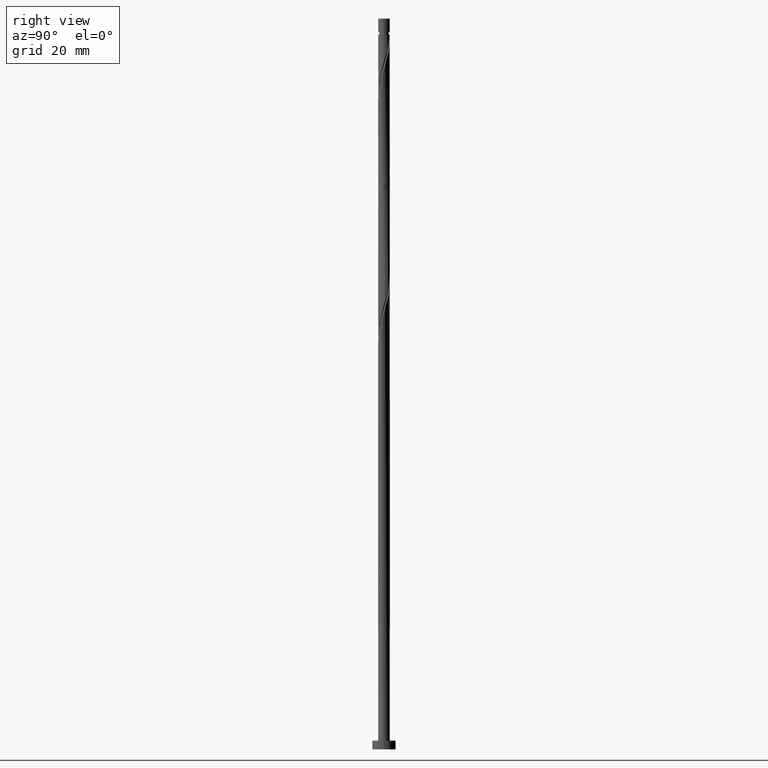
[diagram: clean part render]
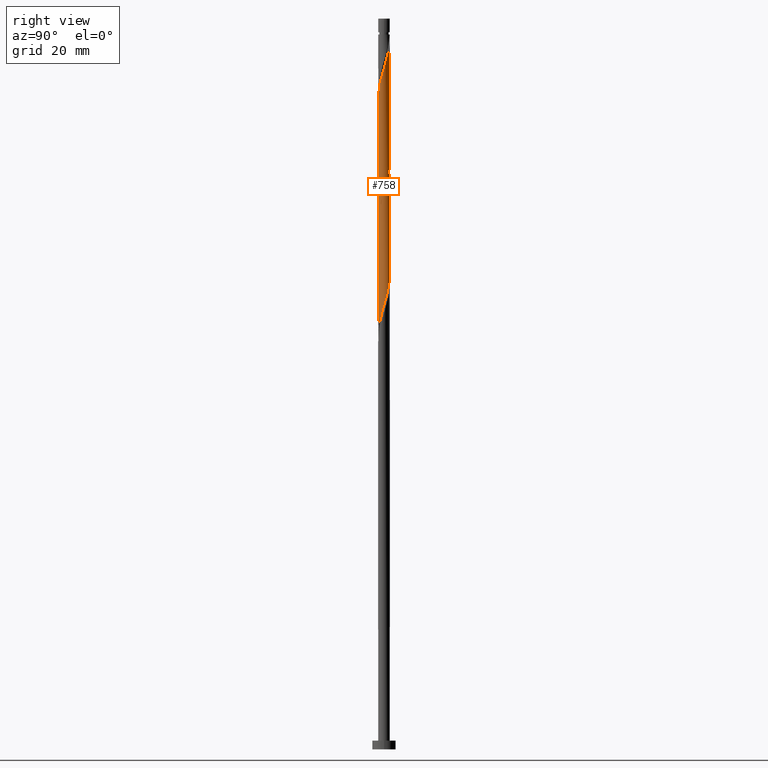
[diagram: same view with one face highlighted and labeled with its STEP entity id]
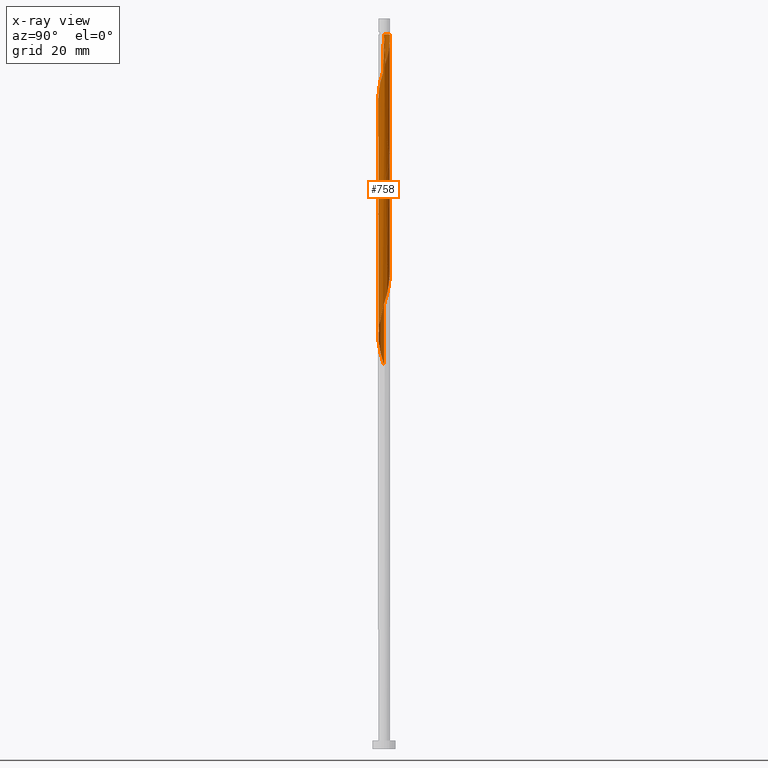
[diagram: x-ray of the same camera — body ghosted, the highlighted face saturated]
A machine part, right view. The second image highlights one B-rep face of the part: STEP entity #758.
The next image is the same camera in x-ray: the body ghosted, the highlighted face saturated — about 0% of this face is hidden behind the body in this view.
In plain terms, the highlighted cylindrical surface (bore or boss wall) has radius 2 mm, axis along (-0, -0, -1).
Its self-contained STEP definition (entity closure, byte-faithful):
#16 = DIRECTION ( 'NONE',  ( -1.000000000000000000, 0.000000000000000000, 0.000000000000000000 ) ) ;
#29 = CARTESIAN_POINT ( 'NONE',  ( -2.000000000000000444, -0.1625128770740892348, 131.8525064996769345 ) ) ;
#35 = CARTESIAN_POINT ( 'NONE',  ( 1.999999999999999556, 0.1625128770740915940, 194.3525064996769061 ) ) ;
#43 = CARTESIAN_POINT ( 'NONE',  ( -0.8554886662037719525, -1.807799530367482976, 138.7989864505392745 ) ) ;
#44 = AXIS2_PLACEMENT_3D ( 'NONE', #468, #209, #1661 ) ;
#82 = CARTESIAN_POINT ( 'NONE',  ( -2.000000000000003109, -5.234578486650210785E-17, 211.9902953438781879 ) ) ;
#85 = CARTESIAN_POINT ( 'NONE',  ( -1.691500872565838032, 1.067157344588420598, 210.9143710659238593 ) ) ;
#103 = CARTESIAN_POINT ( 'NONE',  ( 1.974395566656741430, 0.4009181193270345833, 234.1515505531035046 ) ) ;
#107 = CARTESIAN_POINT ( 'NONE',  ( -1.001816893764148064, 1.731000552099494438, 166.0425761941290546 ) ) ;
#110 = CARTESIAN_POINT ( 'NONE',  ( 1.561924511375714308, 1.272542735157548677, 237.3566787582316522 ) ) ;
#120 = CARTESIAN_POINT ( 'NONE',  ( -0.3979949748427103473, 1.960000000000608367, 244.5682172197699913 ) ) ;
#121 = CARTESIAN_POINT ( 'NONE',  ( -0.08262873780345499075, 1.998292393942640688, 204.5041146556675358 ) ) ;
#129 = CIRCLE ( 'NONE', #44, 1.999999999999982681 ) ;
#130 = VERTEX_POINT ( 'NONE', #325 ) ;
#157 = VECTOR ( 'NONE', #222, 1000.000000000000000 ) ;
#165 = CARTESIAN_POINT ( 'NONE',  ( -1.074995270449262907, -1.703924399892854602, 137.9977043992572305 ) ) ;
#167 =( BOUNDED_CURVE ( )  B_SPLINE_CURVE ( 2, ( #648, #716, #854, #1638, #817, #1263, #489, #1406, #636, #1565, #1700, #993, #1693, #617, #381, #511, #255, #769, #1413, #742, #1025, #1142, #733, #609, #1282, #885, #388, #1677, #1536, #1542, #1685, #1440, #1006, #261, #760, #374, #107, #226, #1422, #1291, #1001, #625, #1295, #367, #891, #495, #1550, #878, #245, #753, #1150, #1016, #327, #1370, #175, #186, #1206, #945, #1227, #1347, #1088, #681, #1485, #1118, #560, #1075, #1214, #714, #1645, #1525, #43, #165, #693, #973, #572, #339, #955, #205, #850, #29, #445 ),
 .UNSPECIFIED., .F., .T. ) 
 B_SPLINE_CURVE_WITH_KNOTS ( ( 3, 2, 2, 2, 2, 2, 2, 2, 2, 2, 2, 2, 2, 2, 2, 2, 2, 2, 2, 2, 2, 2, 2, 2, 2, 2, 2, 2, 2, 2, 2, 2, 2, 2, 2, 2, 2, 2, 2, 2, 3 ),
 ( 0.5545271625973832164, 0.5576923076923077094, 0.5673076923076922906, 0.5769230769230768718, 0.5865384615384615641, 0.5961538461538461453, 0.6057692307692307265, 0.6153846153846154188, 0.6250000000000000000, 0.6346153846153845812, 0.6442307692307692735, 0.6538461538461538547, 0.6634615384615384359, 0.6730769230769231282, 0.6826923076923077094, 0.6923076923076922906, 0.7019230769230768718, 0.7115384615384615641, 0.7211538461538461453, 0.7307692307692307265, 0.7403846153846154188, 0.7500000000000000000, 0.7596153846153845812, 0.7692307692307692735, 0.7788461538461538547, 0.7884615384615384359, 0.7980769230769231282, 0.8076923076923077094, 0.8173076923076922906, 0.8269230769230768718, 0.8365384615384615641, 0.8461538461538461453, 0.8557692307692307265, 0.8653846153846154188, 0.8750000000000000000, 0.8846153846153845812, 0.8942307692307692735, 0.9038461538461537437, 0.9134615384615383249, 0.9230769230769231282, 0.9295271625973833274 ),
 .UNSPECIFIED. ) 
 CURVE ( )  GEOMETRIC_REPRESENTATION_ITEM ( )  RATIONAL_B_SPLINE_CURVE ( ( 0.9061636035682996138, 0.9069090390690881520, 0.9090909090909448098, 0.9024626128164481287, 0.9090909090909448098, 0.9024626128164481287, 0.9090909090909448098, 0.9024626128164481287, 0.9090909090909448098, 0.9024626128164481287, 0.9090909090909448098, 0.9024626128164481287, 0.9090909090909448098, 0.9024626128164481287, 0.9090909090909448098, 0.9024626128164481287, 0.9090909090909448098, 0.9024626128164481287, 0.9090909090909448098, 0.9024626128164481287, 0.9090909090909448098, 0.9024626128164481287, 0.9090909090909448098, 0.9024626128164481287, 0.9090909090909448098, 0.9024626128164481287, 0.9090909090909448098, 0.9024626128164481287, 0.9090909090909448098, 0.9024626128164481287, 0.9090909090909448098, 0.9024626128164481287, 0.9090909090909448098, 0.9024626128164481287, 0.9090909090909448098, 0.9024626128164481287, 0.9090909090909448098, 0.9024626128164481287, 0.9090909090909448098, 0.9024626128164481287, 0.9090909090909448098, 0.9024626128164481287, 0.9090909090909448098, 0.9024626128164481287, 0.9090909090909448098, 0.9024626128164481287, 0.9090909090909448098, 0.9024626128164481287, 0.9090909090909448098, 0.9024626128164481287, 0.9090909090909448098, 0.9024626128164481287, 0.9090909090909448098, 0.9024626128164481287, 0.9090909090909448098, 0.9024626128164481287, 0.9090909090909448098, 0.9024626128164481287, 0.9090909090909448098, 0.9024626128164481287, 0.9090909090909448098, 0.9024626128164481287, 0.9090909090909448098, 0.9024626128164481287, 0.9090909090909448098, 0.9024626128164481287, 0.9090909090909448098, 0.9024626128164481287, 0.9090909090909448098, 0.9024626128164481287, 0.9090909090909448098, 0.9024626128164481287, 0.9090909090909448098, 0.9024626128164481287, 0.9090909090909448098, 0.9024626128164481287, 0.9090909090909448098, 0.9024626128164481287, 0.9090909090909448098, 0.9046444828383046755, 0.9061636035682995027 ) ) 
 REPRESENTATION_ITEM ( '' )  );
#175 = CARTESIAN_POINT ( 'NONE',  ( 1.993682386258019967, -0.1588412500722983789, 151.6194992710520921 ) ) ;
#185 = VERTEX_POINT ( 'NONE', #1242 ) ;
#186 = CARTESIAN_POINT ( 'NONE',  ( 1.974395566656737877, -0.4009181193270348609, 150.8182172197700766 ) ) ;
#199 = DIRECTION ( 'NONE',  ( -0.000000000000000000, -0.000000000000000000, -1.000000000000000000 ) ) ;
#201 = CARTESIAN_POINT ( 'NONE',  ( 1.074995270449263352, -1.703924399892858377, 226.1387300402829226 ) ) ;
#205 = CARTESIAN_POINT ( 'NONE',  ( -1.934556391662673569, -0.5625520060541976397, 133.1900120915649097 ) ) ;
#209 = DIRECTION ( 'NONE',  ( -0.000000000000000000, -0.000000000000000000, -1.000000000000000000 ) ) ;
#219 = CARTESIAN_POINT ( 'NONE',  ( -1.211998413758899718, -1.609357958033089009, 218.1259095274624542 ) ) ;
#222 = DIRECTION ( 'NONE',  ( -0.000000000000000000, -0.000000000000000000, -1.000000000000000000 ) ) ;
#223 = CARTESIAN_POINT ( 'NONE',  ( -1.999999999999982681, 0.000000000000000000, 244.5682172197700766 ) ) ;
#226 = CARTESIAN_POINT ( 'NONE',  ( -0.7916353737693995196, 1.852643146165902310, 165.2412941428469537 ) ) ;
#229 = CARTESIAN_POINT ( 'NONE',  ( 1.897736400206355922, 0.6313450366731626628, 234.9528326043853781 ) ) ;
#230 =( BOUNDED_CURVE ( )  B_SPLINE_CURVE ( 2, ( #82, #598, #1220, #1096, #1127, #1105, #460, #485, #831, #219, #1640, #1512, #477, #1239, #335, #1377, #451, #843, #709, #201, #986, #1529, #353, #856, #728, #865, #1408, #1434, #258, #103, #229, #755, #611, #110, #1544, #1273, #763, #369, #1710, #1293, #643, #1416, #120 ),
 .UNSPECIFIED., .F., .T. ) 
 B_SPLINE_CURVE_WITH_KNOTS ( ( 3, 2, 2, 2, 2, 2, 2, 2, 2, 2, 2, 2, 2, 2, 2, 2, 2, 2, 2, 2, 2, 3 ),
 ( 0.5545271625973832164, 0.5576923076923077094, 0.5673076923076922906, 0.5769230769230768718, 0.5865384615384615641, 0.5961538461538461453, 0.6057692307692308376, 0.6153846153846154188, 0.6250000000000000000, 0.6346153846153845812, 0.6442307692307691624, 0.6538461538461537437, 0.6634615384615383249, 0.6730769230769230171, 0.6826923076923075984, 0.6923076923076921796, 0.7019230769230767608, 0.7115384615384614531, 0.7211538461538460343, 0.7307692307692307265, 0.7403846153846153078, 0.7499999999999998890 ),
 .UNSPECIFIED. ) 
 CURVE ( )  GEOMETRIC_REPRESENTATION_ITEM ( )  RATIONAL_B_SPLINE_CURVE ( ( 0.9061636035683054979, 0.9069090390690941472, 0.9090909090909508050, 0.9024626128164540129, 0.9090909090909508050, 0.9024626128164540129, 0.9090909090909508050, 0.9024626128164540129, 0.9090909090909508050, 0.9024626128164540129, 0.9090909090909508050, 0.9024626128164540129, 0.9090909090909508050, 0.9024626128164540129, 0.9090909090909508050, 0.9024626128164540129, 0.9090909090909508050, 0.9024626128164540129, 0.9090909090909508050, 0.9024626128164540129, 0.9090909090909508050, 0.9024626128164540129, 0.9090909090909508050, 0.9024626128164540129, 0.9090909090909508050, 0.9024626128164540129, 0.9090909090909508050, 0.9024626128164540129, 0.9090909090909508050, 0.9024626128164540129, 0.9090909090909508050, 0.9024626128164540129, 0.9090909090909508050, 0.9024626128164540129, 0.9090909090909508050, 0.9024626128164540129, 0.9090909090909508050, 0.9024626128164540129, 0.9090909090909508050, 0.9024626128164540129, 0.9090909090909508050, 0.9024626128164541239, 0.9090909090909506940 ) ) 
 REPRESENTATION_ITEM ( '' )  );
#235 = ORIENTED_EDGE ( 'NONE', *, *, #251, .T. ) ;
#244 = EDGE_LOOP ( 'NONE', ( #954, #1170, #943, #235, #931, #608, #543, #559 ) ) ;
#245 = CARTESIAN_POINT ( 'NONE',  ( 1.597623926539769146, 1.203161580731220814, 156.4271915787444129 ) ) ;
#251 = EDGE_CURVE ( 'NONE', #436, #1473, #1251, .T. ) ;
#255 = CARTESIAN_POINT ( 'NONE',  ( -0.3979949748426498957, -1.959999999999999520, 182.0682172197700766 ) ) ;
#258 = CARTESIAN_POINT ( 'NONE',  ( 1.993682386258022632, 0.1588412500722958531, 233.3502685018213754 ) ) ;
#261 = CARTESIAN_POINT ( 'NONE',  ( -1.561924511375710978, 1.272542735157548233, 168.4464223479751297 ) ) ;
#264 = CARTESIAN_POINT ( 'NONE',  ( -2.000000000000003109, -5.234578486650210785E-17, 211.9902953438781879 ) ) ;
#273 = CARTESIAN_POINT ( 'NONE',  ( 1.074995270449263129, 1.703924399892854602, 200.4977043992572021 ) ) ;
#286 = CARTESIAN_POINT ( 'NONE',  ( -1.561924511375710978, 1.272542735157548233, 210.1130890146418437 ) ) ;
#325 = CARTESIAN_POINT ( 'NONE',  ( 2.000000000000000444, 2.123743271726671248E-15, 193.8128057623286224 ) ) ;
#327 = CARTESIAN_POINT ( 'NONE',  ( 1.973762798760987147, 0.3228938126183191204, 153.2220633736161801 ) ) ;
#335 = CARTESIAN_POINT ( 'NONE',  ( -0.08262873780345621200, -1.998292393942642908, 222.1323197838725889 ) ) ;
#339 = CARTESIAN_POINT ( 'NONE',  ( -1.743714191808983793, -1.009174915127427186, 134.7925761941290261 ) ) ;
#353 = CARTESIAN_POINT ( 'NONE',  ( 1.597623926539770256, -1.203161580731224145, 228.5425761941290261 ) ) ;
#354 = CARTESIAN_POINT ( 'NONE',  ( -0.5584503685516643001, 1.920451297446647221, 206.1066787582315953 ) ) ;
#357 = CARTESIAN_POINT ( 'NONE',  ( -2.000000000000000000, 0.000000000000000000, 250.0000000000000000 ) ) ;
#358 = LINE ( 'NONE', #723, #1114 ) ;
#367 = CARTESIAN_POINT ( 'NONE',  ( 0.6359820619582814416, 1.911674660842111129, 160.4336018351546613 ) ) ;
#369 = CARTESIAN_POINT ( 'NONE',  ( 0.7916353737694016290, 1.852643146165904975, 240.5618069633598850 ) ) ;
#374 = CARTESIAN_POINT ( 'NONE',  ( -1.211998413758896609, 1.609357958033087010, 166.8438582454109849 ) ) ;
#381 = CARTESIAN_POINT ( 'NONE',  ( 0.08262873780345436625, -1.998292393942640688, 183.6707813223341645 ) ) ;
#388 = CARTESIAN_POINT ( 'NONE',  ( -1.973762798760987147, -0.3228938126183189539, 174.0553967069495798 ) ) ;
#390 = CARTESIAN_POINT ( 'NONE',  ( 0.6359820619582814416, 1.911674660842111129, 202.1002685018213469 ) ) ;
#414 = CARTESIAN_POINT ( 'NONE',  ( 1.973762798760987147, 0.3228938126183191204, 194.8887300402828657 ) ) ;
#423 = CYLINDRICAL_SURFACE ( 'NONE', #1048, 2.000000000000000000 ) ;
#436 = VERTEX_POINT ( 'NONE', #264 ) ;
#445 = CARTESIAN_POINT ( 'NONE',  ( -2.000000000000000000, 2.669635028191625354E-15, 131.3128057623286224 ) ) ;
#451 = CARTESIAN_POINT ( 'NONE',  ( 0.3979949748426497291, -1.960000000000002629, 223.7348838864367622 ) ) ;
#460 = CARTESIAN_POINT ( 'NONE',  ( -1.691500872565841140, -1.067157344588421486, 215.7220633736162085 ) ) ;
#468 = CARTESIAN_POINT ( 'NONE',  ( 0.000000000000000000, 0.000000000000000000, 244.5682172197700766 ) ) ;
#477 = CARTESIAN_POINT ( 'NONE',  ( -0.5584503685516657434, -1.920451297446650329, 220.5297556813085009 ) ) ;
#485 = CARTESIAN_POINT ( 'NONE',  ( -1.561924511375713642, -1.272542735157549787, 216.5233454248983378 ) ) ;
#489 = CARTESIAN_POINT ( 'NONE',  ( 1.691500872565838032, -1.067157344588420820, 190.0810377325905733 ) ) ;
#494 = EDGE_CURVE ( 'NONE', #1031, #1469, #129, .T. ) ;
#495 = CARTESIAN_POINT ( 'NONE',  ( 1.074995270449263129, 1.703924399892854602, 158.8310377325905165 ) ) ;
#508 = CARTESIAN_POINT ( 'NONE',  ( -2.000000000000000888, 0.07954626067352783825, 214.3819681800289629 ) ) ;
#511 = CARTESIAN_POINT ( 'NONE',  ( -0.1600078877270194322, -2.008325339157888134, 182.8694992710520921 ) ) ;
#543 = ORIENTED_EDGE ( 'NONE', *, *, #990, .T. ) ;
#559 = ORIENTED_EDGE ( 'NONE', *, *, #1036, .F. ) ;
#560 = CARTESIAN_POINT ( 'NONE',  ( 0.5584503685516641891, -1.920451297446647221, 143.6066787582315953 ) ) ;
#570 = EDGE_CURVE ( 'NONE', #436, #1469, #230, .T. ) ;
#572 = CARTESIAN_POINT ( 'NONE',  ( -1.597623926539769146, -1.203161580731221481, 135.5938582454110986 ) ) ;
#598 = CARTESIAN_POINT ( 'NONE',  ( -2.000000000000002665, -0.07954626067353502694, 212.2544662595111333 ) ) ;
#599 = CARTESIAN_POINT ( 'NONE',  ( -2.000000000000000000, 2.669635028191625354E-15, 131.3128057623286224 ) ) ;
#608 = ORIENTED_EDGE ( 'NONE', *, *, #990, .F. ) ;
#609 = CARTESIAN_POINT ( 'NONE',  ( -1.743714191808983793, -1.009174915127427186, 176.4592428607956833 ) ) ;
#611 = CARTESIAN_POINT ( 'NONE',  ( 1.691500872565840918, 1.067157344588421708, 236.5553967069495513 ) ) ;
#617 = CARTESIAN_POINT ( 'NONE',  ( 0.3252653633339281924, -1.988259448727392131, 184.4720633736161801 ) ) ;
#625 = CARTESIAN_POINT ( 'NONE',  ( 0.1600078877270190436, 2.008325339157888134, 162.0361659377187777 ) ) ;
#631 = CARTESIAN_POINT ( 'NONE',  ( 1.743714191808984681, 1.009174915127426297, 197.2925761941289693 ) ) ;
#636 = CARTESIAN_POINT ( 'NONE',  ( 1.386961462567303904, -1.440950346595317955, 188.4784736300264854 ) ) ;
#643 = CARTESIAN_POINT ( 'NONE',  ( 0.08262873780345734998, 1.998292393942642908, 242.9656531172059317 ) ) ;
#648 = CARTESIAN_POINT ( 'NONE',  ( 2.000000000000000444, 2.123743271726671248E-15, 193.8128057623286224 ) ) ;
#659 = DIRECTION ( 'NONE',  ( -0.000000000000000000, -0.000000000000000000, -1.000000000000000000 ) ) ;
#664 = VERTEX_POINT ( 'NONE', #1010 ) ;
#681 = CARTESIAN_POINT ( 'NONE',  ( 1.211998413758895943, -1.609357958033087455, 146.0105249120777557 ) ) ;
#693 = CARTESIAN_POINT ( 'NONE',  ( -1.263264465859908148, -1.550536323113935078, 137.1964223479751581 ) ) ;
#708 = CARTESIAN_POINT ( 'NONE',  ( -2.000000000000000000, 0.000000000000000000, 250.0000000000000000 ) ) ;
#709 = CARTESIAN_POINT ( 'NONE',  ( 0.8554886662037717304, -1.807799530367486529, 225.3374479890008502 ) ) ;
#714 = CARTESIAN_POINT ( 'NONE',  ( -0.1600078877270194322, -2.008325339157888134, 141.2028326043854349 ) ) ;
#716 = CARTESIAN_POINT ( 'NONE',  ( 2.000000000000000444, -0.07954626067353669228, 193.5486348466956201 ) ) ;
#723 = CARTESIAN_POINT ( 'NONE',  ( 2.000000000000000000, 2.449293598294706414E-16, 250.0000000000000000 ) ) ;
#728 = CARTESIAN_POINT ( 'NONE',  ( 1.839135291735831457, -0.7858634605908146886, 230.1451402966931425 ) ) ;
#731 = CARTESIAN_POINT ( 'NONE',  ( -1.974395566656737877, 0.4009181193270346388, 213.3182172197700481 ) ) ;
#733 = CARTESIAN_POINT ( 'NONE',  ( -1.597623926539769146, -1.203161580731221481, 177.2605249120777842 ) ) ;
#739 = CARTESIAN_POINT ( 'NONE',  ( -1.897736400206351481, 0.6313450366731636620, 212.5169351684880326 ) ) ;
#742 = CARTESIAN_POINT ( 'NONE',  ( -1.074995270449262907, -1.703924399892854602, 179.6643710659239161 ) ) ;
#746 = CARTESIAN_POINT ( 'NONE',  ( -2.000000000000000000, 8.150986500641094620E-16, 214.6461390956619653 ) ) ;
#753 = CARTESIAN_POINT ( 'NONE',  ( 1.743714191808984681, 1.009174915127426297, 155.6259095274623689 ) ) ;
#755 = CARTESIAN_POINT ( 'NONE',  ( 1.821077233755969083, 0.8617719540192924077, 235.7541146556675358 ) ) ;
#758 = ADVANCED_FACE ( 'NONE', ( #1717 ), #423, .T. ) ;
#760 = CARTESIAN_POINT ( 'NONE',  ( -1.386961462567303904, 1.440950346595317955, 167.6451402966931141 ) ) ;
#763 = CARTESIAN_POINT ( 'NONE',  ( 1.001816893764150951, 1.731000552099496215, 239.7605249120777557 ) ) ;
#769 = CARTESIAN_POINT ( 'NONE',  ( -0.6359820619582813306, -1.911674660842111351, 181.2669351684880041 ) ) ;
#789 = CARTESIAN_POINT ( 'NONE',  ( -1.001816893764148064, 1.731000552099494438, 207.7092428607957402 ) ) ;
#804 = CARTESIAN_POINT ( 'NONE',  ( -0.3252653633339290806, 1.988259448727392131, 205.3053967069495229 ) ) ;
#817 = CARTESIAN_POINT ( 'NONE',  ( 1.897736400206351481, -0.6313450366731644392, 191.6836018351546613 ) ) ;
#831 = CARTESIAN_POINT ( 'NONE',  ( -1.386961462567306347, -1.440950346595318843, 217.3246274761802681 ) ) ;
#843 = CARTESIAN_POINT ( 'NONE',  ( 0.6359820619582808865, -1.911674660842115347, 224.5361659377188630 ) ) ;
#850 = CARTESIAN_POINT ( 'NONE',  ( -1.973762798760987147, -0.3228938126183189539, 132.3887300402828657 ) ) ;
#854 = CARTESIAN_POINT ( 'NONE',  ( 1.993682386258019967, -0.1588412500722983789, 193.2861659377188062 ) ) ;
#856 = CARTESIAN_POINT ( 'NONE',  ( 1.743714191808986458, -1.009174915127430738, 229.3438582454111270 ) ) ;
#860 =( BOUNDED_CURVE ( )  B_SPLINE_CURVE ( 2, ( #746, #508, #867, #731, #739, #1253, #85, #286, #1163, #896, #789, #932, #354, #804, #121, #1274, #1689, #390, #1450, #273, #1011, #1426, #1286, #631, #1696, #1021, #414, #35, #1202 ),
 .UNSPECIFIED., .F., .T. ) 
 B_SPLINE_CURVE_WITH_KNOTS ( ( 3, 2, 2, 2, 2, 2, 2, 2, 2, 2, 2, 2, 2, 2, 3 ),
 ( 0.4295271625973828833, 0.4326923076923077094, 0.4423076923076922906, 0.4519230769230769273, 0.4615384615384615641, 0.4711538461538461453, 0.4807692307692307820, 0.4903846153846153633, 0.5000000000000000000, 0.5096153846153845812, 0.5192307692307692735, 0.5288461538461538547, 0.5384615384615384359, 0.5480769230769231282, 0.5545271625973832164 ),
 .UNSPECIFIED. ) 
 CURVE ( )  GEOMETRIC_REPRESENTATION_ITEM ( )  RATIONAL_B_SPLINE_CURVE ( ( 0.9061636035682993917, 0.9069090390690879300, 0.9090909090909448098, 0.9024626128164481287, 0.9090909090909448098, 0.9024626128164481287, 0.9090909090909448098, 0.9024626128164481287, 0.9090909090909448098, 0.9024626128164481287, 0.9090909090909448098, 0.9024626128164481287, 0.9090909090909448098, 0.9024626128164481287, 0.9090909090909448098, 0.9024626128164481287, 0.9090909090909448098, 0.9024626128164481287, 0.9090909090909448098, 0.9024626128164481287, 0.9090909090909448098, 0.9024626128164481287, 0.9090909090909448098, 0.9024626128164481287, 0.9090909090909448098, 0.9024626128164481287, 0.9090909090909448098, 0.9046444828383048975, 0.9061636035682996138 ) ) 
 REPRESENTATION_ITEM ( '' )  );
#865 = CARTESIAN_POINT ( 'NONE',  ( 1.934556391662676900, -0.5625520060542003042, 230.9464223479752718 ) ) ;
#867 = CARTESIAN_POINT ( 'NONE',  ( -1.993682386258019523, 0.1588412500722972409, 214.1194992710520921 ) ) ;
#873 = LINE ( 'NONE', #708, #1533 ) ;
#878 = CARTESIAN_POINT ( 'NONE',  ( 1.451533661270554054, 1.397148246335015775, 157.2284736300264569 ) ) ;
#882 = EDGE_CURVE ( 'NONE', #130, #1473, #167, .T. ) ;
#885 = CARTESIAN_POINT ( 'NONE',  ( -1.934556391662673569, -0.5625520060541976397, 174.8566787582315669 ) ) ;
#891 = CARTESIAN_POINT ( 'NONE',  ( 0.8554886662037728406, 1.807799530367482532, 159.6323197838726173 ) ) ;
#896 = CARTESIAN_POINT ( 'NONE',  ( -1.211998413758896609, 1.609357958033087010, 208.5105249120777842 ) ) ;
#931 = ORIENTED_EDGE ( 'NONE', *, *, #882, .F. ) ;
#932 = CARTESIAN_POINT ( 'NONE',  ( -0.7916353737693995196, 1.852643146165902310, 206.9079608095136109 ) ) ;
#943 = ORIENTED_EDGE ( 'NONE', *, *, #570, .F. ) ;
#945 = CARTESIAN_POINT ( 'NONE',  ( 1.821077233755965530, -0.8617719540192920746, 149.2156531172059033 ) ) ;
#954 = ORIENTED_EDGE ( 'NONE', *, *, #1561, .F. ) ;
#955 = CARTESIAN_POINT ( 'NONE',  ( -1.839135291735829014, -0.7858634605908129123, 133.9912941428469537 ) ) ;
#973 = CARTESIAN_POINT ( 'NONE',  ( -1.451533661270553610, -1.397148246335015775, 136.3951402966931425 ) ) ;
#986 = CARTESIAN_POINT ( 'NONE',  ( 1.263264465859909036, -1.550536323113937520, 226.9400120915649381 ) ) ;
#990 = EDGE_CURVE ( 'NONE', #664, #130, #358, .T. ) ;
#993 = CARTESIAN_POINT ( 'NONE',  ( 0.7916353737693991865, -1.852643146165902310, 186.0746274761802965 ) ) ;
#1001 = CARTESIAN_POINT ( 'NONE',  ( -0.08262873780345499075, 1.998292393942640688, 162.8374479890008217 ) ) ;
#1006 = CARTESIAN_POINT ( 'NONE',  ( -1.691500872565838032, 1.067157344588420598, 169.2477043992572590 ) ) ;
#1010 = CARTESIAN_POINT ( 'NONE',  ( 2.000000000000000000, 2.449293598294706414E-16, 244.5682172197700766 ) ) ;
#1011 = CARTESIAN_POINT ( 'NONE',  ( 1.263264465859909036, 1.550536323113934412, 199.6964223479751581 ) ) ;
#1016 = CARTESIAN_POINT ( 'NONE',  ( 1.934556391662674013, 0.5625520060541965295, 154.0233454248982241 ) ) ;
#1021 = CARTESIAN_POINT ( 'NONE',  ( 1.934556391662674013, 0.5625520060541965295, 195.6900120915649097 ) ) ;
#1025 = CARTESIAN_POINT ( 'NONE',  ( -1.263264465859908148, -1.550536323113935078, 178.8630890146418722 ) ) ;
#1031 = VERTEX_POINT ( 'NONE', #223 ) ;
#1036 = EDGE_CURVE ( 'NONE', #185, #130, #860, .T. ) ;
#1048 = AXIS2_PLACEMENT_3D ( 'NONE', #1201, #659, #16 ) ;
#1075 = CARTESIAN_POINT ( 'NONE',  ( 0.3252653633339281924, -1.988259448727392131, 142.8053967069495229 ) ) ;
#1088 = CARTESIAN_POINT ( 'NONE',  ( 1.386961462567303904, -1.440950346595317955, 146.8118069633598566 ) ) ;
#1096 = CARTESIAN_POINT ( 'NONE',  ( -1.974395566656741430, -0.4009181193270349164, 213.3182172197701618 ) ) ;
#1105 = CARTESIAN_POINT ( 'NONE',  ( -1.821077233755968861, -0.8617719540192931849, 214.9207813223341930 ) ) ;
#1114 = VECTOR ( 'NONE', #1402, 1000.000000000000000 ) ;
#1118 = CARTESIAN_POINT ( 'NONE',  ( 0.7916353737693991865, -1.852643146165902310, 144.4079608095136393 ) ) ;
#1127 = CARTESIAN_POINT ( 'NONE',  ( -1.897736400206355256, -0.6313450366731635510, 214.1194992710521205 ) ) ;
#1142 = CARTESIAN_POINT ( 'NONE',  ( -1.451533661270553610, -1.397148246335015775, 178.0618069633598282 ) ) ;
#1150 = CARTESIAN_POINT ( 'NONE',  ( 1.839135291735829236, 0.7858634605908124682, 154.8246274761802681 ) ) ;
#1163 = CARTESIAN_POINT ( 'NONE',  ( -1.386961462567303904, 1.440950346595317955, 209.3118069633597997 ) ) ;
#1170 = ORIENTED_EDGE ( 'NONE', *, *, #494, .T. ) ;
#1201 = CARTESIAN_POINT ( 'NONE',  ( 0.000000000000000000, 0.000000000000000000, 250.0000000000000000 ) ) ;
#1202 = CARTESIAN_POINT ( 'NONE',  ( 2.000000000000000444, 2.123743271726671248E-15, 193.8128057623286224 ) ) ;
#1206 = CARTESIAN_POINT ( 'NONE',  ( 1.897736400206351481, -0.6313450366731644392, 150.0169351684880326 ) ) ;
#1214 = CARTESIAN_POINT ( 'NONE',  ( 0.08262873780345436625, -1.998292393942640688, 142.0041146556674789 ) ) ;
#1220 = CARTESIAN_POINT ( 'NONE',  ( -1.993682386258022188, -0.1588412500722965470, 212.5169351684880041 ) ) ;
#1227 = CARTESIAN_POINT ( 'NONE',  ( 1.691500872565838032, -1.067157344588420820, 148.4143710659239446 ) ) ;
#1239 = CARTESIAN_POINT ( 'NONE',  ( -0.3252653633339305239, -1.988259448727395462, 221.3310377325906302 ) ) ;
#1242 = CARTESIAN_POINT ( 'NONE',  ( -2.000000000000000000, 8.150986500641094620E-16, 214.6461390956619653 ) ) ;
#1251 = LINE ( 'NONE', #357, #157 ) ;
#1253 = CARTESIAN_POINT ( 'NONE',  ( -1.821077233755965530, 0.8617719540192920746, 211.7156531172059317 ) ) ;
#1263 = CARTESIAN_POINT ( 'NONE',  ( 1.821077233755965530, -0.8617719540192920746, 190.8823197838726173 ) ) ;
#1273 = CARTESIAN_POINT ( 'NONE',  ( 1.211998413758900384, 1.609357958033088343, 238.9592428607957686 ) ) ;
#1274 = CARTESIAN_POINT ( 'NONE',  ( 0.1600078877270190436, 2.008325339157888134, 203.7028326043854349 ) ) ;
#1282 = CARTESIAN_POINT ( 'NONE',  ( -1.839135291735829014, -0.7858634605908129123, 175.6579608095136393 ) ) ;
#1286 = CARTESIAN_POINT ( 'NONE',  ( 1.597623926539769146, 1.203161580731220814, 198.0938582454110417 ) ) ;
#1291 = CARTESIAN_POINT ( 'NONE',  ( -0.3252653633339290806, 1.988259448727392131, 163.6387300402828657 ) ) ;
#1293 = CARTESIAN_POINT ( 'NONE',  ( 0.3252653633339306904, 1.988259448727395462, 242.1643710659240014 ) ) ;
#1295 = CARTESIAN_POINT ( 'NONE',  ( 0.3979949748426501732, 1.959999999999999520, 161.2348838864367906 ) ) ;
#1347 = CARTESIAN_POINT ( 'NONE',  ( 1.561924511375709645, -1.272542735157549343, 147.6130890146418437 ) ) ;
#1366 = CARTESIAN_POINT ( 'NONE',  ( -0.3979949748427103473, 1.960000000000608367, 244.5682172197700197 ) ) ;
#1370 = CARTESIAN_POINT ( 'NONE',  ( 2.012969205859301169, 0.08323561918243986557, 152.4207813223341077 ) ) ;
#1377 = CARTESIAN_POINT ( 'NONE',  ( 0.1600078877270181554, -2.008325339157891243, 222.9336018351547182 ) ) ;
#1402 = DIRECTION ( 'NONE',  ( -0.000000000000000000, -0.000000000000000000, -1.000000000000000000 ) ) ;
#1406 = CARTESIAN_POINT ( 'NONE',  ( 1.561924511375709645, -1.272542735157549343, 189.2797556813084725 ) ) ;
#1408 = CARTESIAN_POINT ( 'NONE',  ( 1.973762798760990034, -0.3228938126183206192, 231.7477043992572590 ) ) ;
#1413 = CARTESIAN_POINT ( 'NONE',  ( -0.8554886662037719525, -1.807799530367482976, 180.4656531172059601 ) ) ;
#1416 = CARTESIAN_POINT ( 'NONE',  ( -0.1600078877270150468, 2.008325339157890799, 243.7669351684880610 ) ) ;
#1422 = CARTESIAN_POINT ( 'NONE',  ( -0.5584503685516643001, 1.920451297446647221, 164.4400120915649097 ) ) ;
#1426 = CARTESIAN_POINT ( 'NONE',  ( 1.451533661270554054, 1.397148246335015775, 198.8951402966930857 ) ) ;
#1434 = CARTESIAN_POINT ( 'NONE',  ( 2.012969205859303834, -0.08323561918244104518, 232.5489864505393314 ) ) ;
#1440 = CARTESIAN_POINT ( 'NONE',  ( -1.821077233755965530, 0.8617719540192920746, 170.0489864505392745 ) ) ;
#1450 = CARTESIAN_POINT ( 'NONE',  ( 0.8554886662037728406, 1.807799530367482532, 201.2989864505393030 ) ) ;
#1469 = VERTEX_POINT ( 'NONE', #1366 ) ;
#1473 = VERTEX_POINT ( 'NONE', #599 ) ;
#1485 = CARTESIAN_POINT ( 'NONE',  ( 1.001816893764147842, -1.731000552099494438, 145.2092428607957117 ) ) ;
#1512 = CARTESIAN_POINT ( 'NONE',  ( -0.7916353737694011850, -1.852643146165904975, 219.7284736300265706 ) ) ;
#1525 = CARTESIAN_POINT ( 'NONE',  ( -0.6359820619582813306, -1.911674660842111351, 139.6002685018213469 ) ) ;
#1529 = CARTESIAN_POINT ( 'NONE',  ( 1.451533661270556053, -1.397148246335018440, 227.7412941428470390 ) ) ;
#1533 = VECTOR ( 'NONE', #199, 1000.000000000000000 ) ;
#1536 = CARTESIAN_POINT ( 'NONE',  ( -1.993682386258019523, 0.1588412500722972409, 172.4528326043854634 ) ) ;
#1542 = CARTESIAN_POINT ( 'NONE',  ( -1.974395566656737877, 0.4009181193270346388, 171.6515505531033909 ) ) ;
#1544 = CARTESIAN_POINT ( 'NONE',  ( 1.386961462567306569, 1.440950346595318843, 238.1579608095136109 ) ) ;
#1550 = CARTESIAN_POINT ( 'NONE',  ( 1.263264465859909036, 1.550536323113934412, 158.0297556813085578 ) ) ;
#1561 = EDGE_CURVE ( 'NONE', #1031, #185, #873, .T. ) ;
#1565 = CARTESIAN_POINT ( 'NONE',  ( 1.211998413758895943, -1.609357958033087455, 187.6771915787444129 ) ) ;
#1638 = CARTESIAN_POINT ( 'NONE',  ( 1.974395566656737877, -0.4009181193270348609, 192.4848838864367053 ) ) ;
#1640 = CARTESIAN_POINT ( 'NONE',  ( -1.001816893764150285, -1.731000552099496215, 218.9271915787444414 ) ) ;
#1645 = CARTESIAN_POINT ( 'NONE',  ( -0.3979949748426498957, -1.959999999999999520, 140.4015505531034194 ) ) ;
#1661 = DIRECTION ( 'NONE',  ( -1.000000000000000000, 0.000000000000000000, 0.000000000000000000 ) ) ;
#1677 = CARTESIAN_POINT ( 'NONE',  ( -2.012969205859300725, -0.08323561918244055946, 173.2541146556674789 ) ) ;
#1685 = CARTESIAN_POINT ( 'NONE',  ( -1.897736400206351481, 0.6313450366731636620, 170.8502685018213469 ) ) ;
#1689 = CARTESIAN_POINT ( 'NONE',  ( 0.3979949748426501732, 1.959999999999999520, 202.9015505531033909 ) ) ;
#1693 = CARTESIAN_POINT ( 'NONE',  ( 0.5584503685516641891, -1.920451297446647221, 185.2733454248982810 ) ) ;
#1696 = CARTESIAN_POINT ( 'NONE',  ( 1.839135291735829236, 0.7858634605908124682, 196.4912941428469821 ) ) ;
#1700 = CARTESIAN_POINT ( 'NONE',  ( 1.001816893764147842, -1.731000552099494438, 186.8759095274623974 ) ) ;
#1710 = CARTESIAN_POINT ( 'NONE',  ( 0.5584503685516667426, 1.920451297446649663, 241.3630890146418437 ) ) ;
#1717 = FACE_OUTER_BOUND ( 'NONE', #244, .T. ) ;